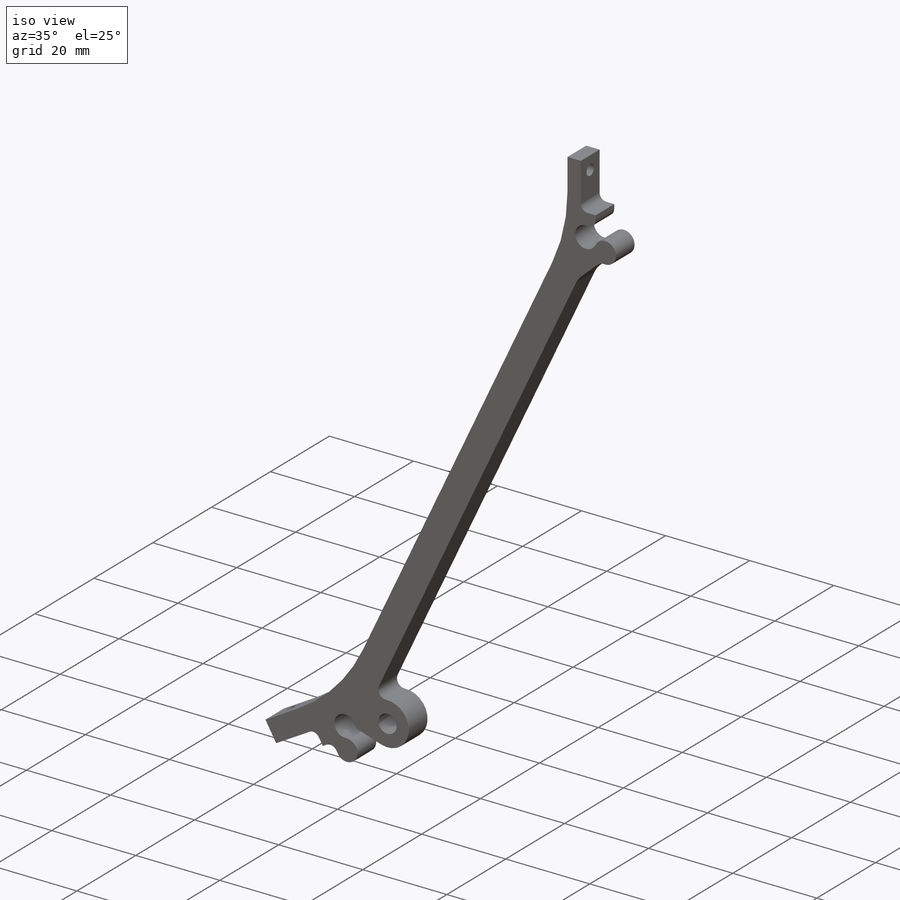
[diagram: iso view]
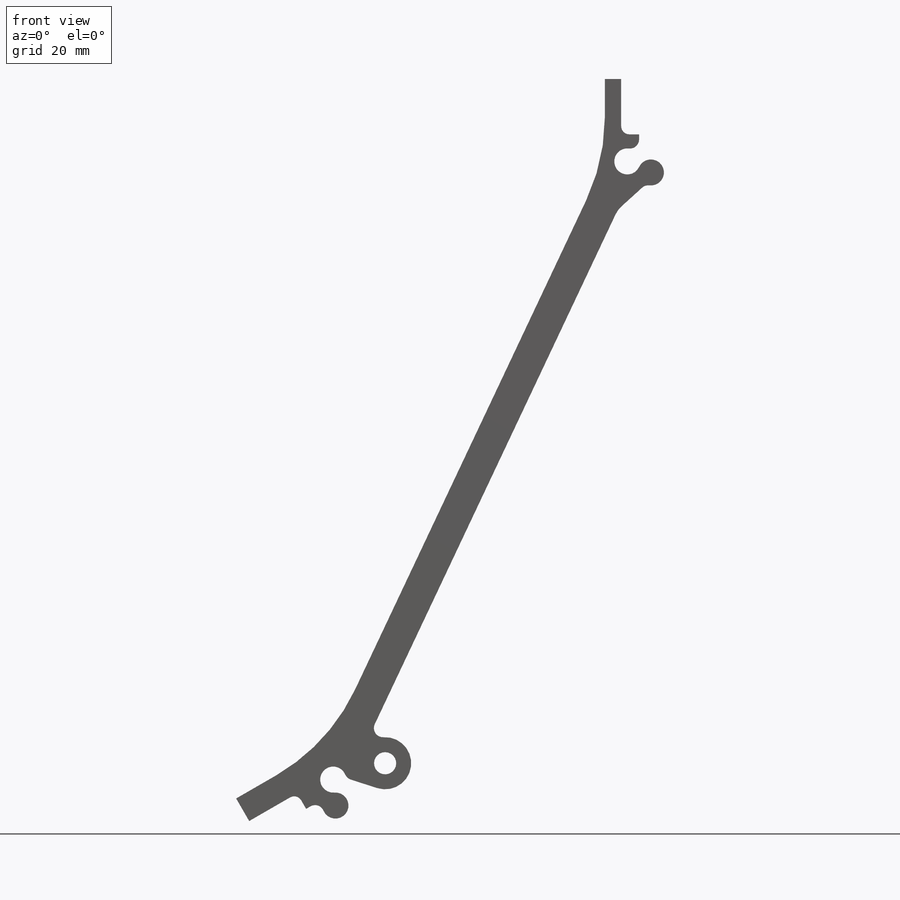
[diagram: front view]
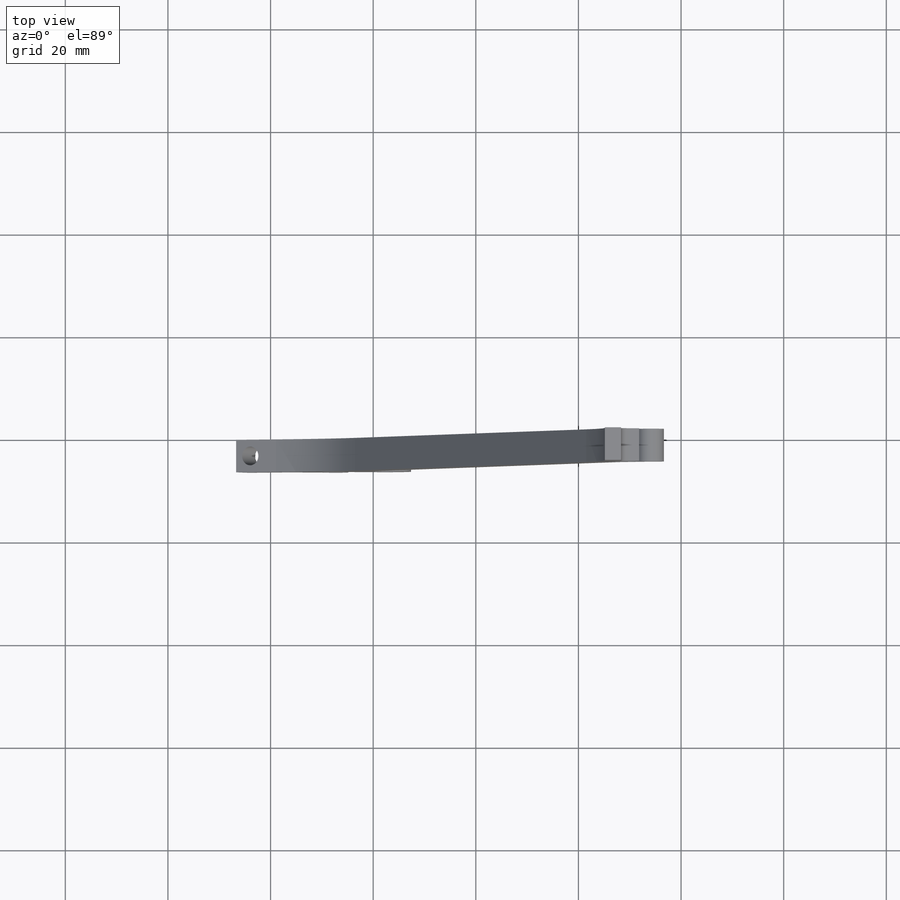
[diagram: top view]
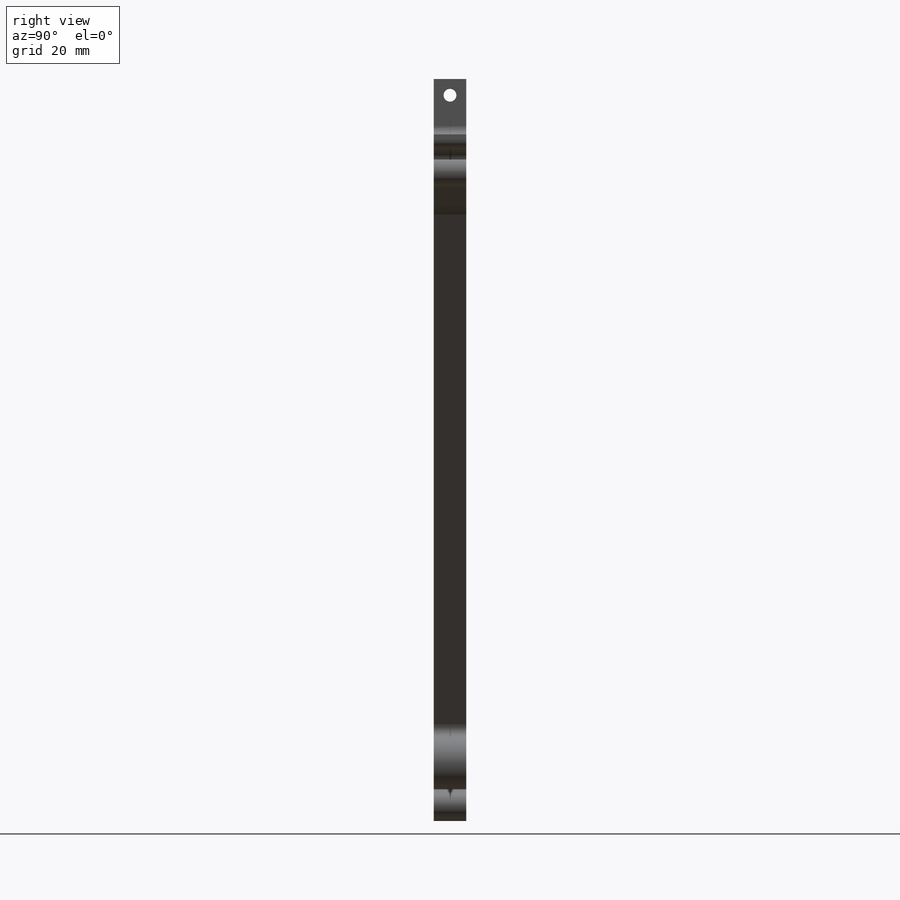
[diagram: right view]
SOLIDWORKS PART (.sldprt)
format: sldprt  version: not decoded by parser v0  size: 283,648 bytes
history: native  units: mm
features: sketch x5, cut_extrude x2, fillet x2, material x1, extrude x1, hole x1, thread x1 (+13 scaffold rows collapsed)
feature tree (26):
  scaffold x13  (default folders/planes/origin — collapsed)
  material  "6061-T6 (SS)"
  sketch  "Sketch1"  dims[c1.D18=5.08mm c1.D20=1.778mm c1.D22=1.778mm c1.D23=5.08mm c1.D24=1.778mm c1.D25=1.778mm c1.D26=4.318mm c1.D27=1.778mm c1.D1=183.642mm c1.D2=142.5448mm c1.D3=~102.784456mm c2.D3=120.0deg c2.D4=~98.44226mm c3.D4=120.0deg c3.D5=82.55mm c3.D6=3.175mm c3.D7=6.35mm c3.D8=12.7mm c3.D9=7.62mm c3.D10=3.175mm c3.D11=5.08mm c3.D12=6.985mm c3.D13=6.985mm c3.D14=12.7mm c3.D15=101.6mm c3.D16=7.62mm c3.D17=3.175mm c4.D8=12.7mm c4.D14=12.7mm c4.D19=2.54mm c4.D21=2.54mm c4.D24=~6.699102mm c4.D25=~6.699102mm c4.D26=~4.317796mm c5.D24=3.302mm c5.D25=3.302mm c5.D26=~5.725206mm]
  extrude  "Boss-Extrude1"  Depth=6.35mm
  sketch  "Sketch2"  dims[D1=3.6576mm D2=3.175mm]
  cut_extrude  "Cut-Extrude1"  [1 undecoded]
  sketch  "Sketch3"  dims[D1=1.27mm D2=3.175mm]
  cut_extrude  "Cut-Extrude2"  [1 undecoded]
  fillet  "Fillet1"  Radius=1.5875mm
  fillet  "Fillet2"  Radius=38.1mm
  hole  "M3x0.5 Tapped Hole1"  Diameter=2.5mm Depth=7.50062mm
  sketch  "Sketch5"
  sketch  "Sketch4"  dims[hole-wizard template sketch: 47 standard entries collapsed; hole parameters kept: c15.Tap Drill Depth=~7.50062mm c15.D3=~14.816244mm c15.Drill Angle=118.0deg]
  thread  "Hole Thread2"  Diameter=5.08mm  [1 undecoded]
decode coverage: 9 of 12 modeling features carry decoded parameters
note: ~ marks probable driven/reference dimensions
note: 3 parameter values undecoded
note: suppression state not decoded; provenance and decode notes live in map.json
